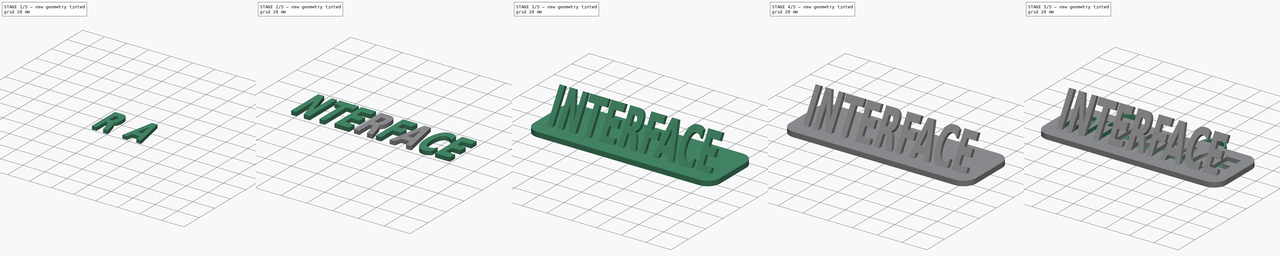
[diagram: build sequence overview — one tinted view per stage of 5, left to right]
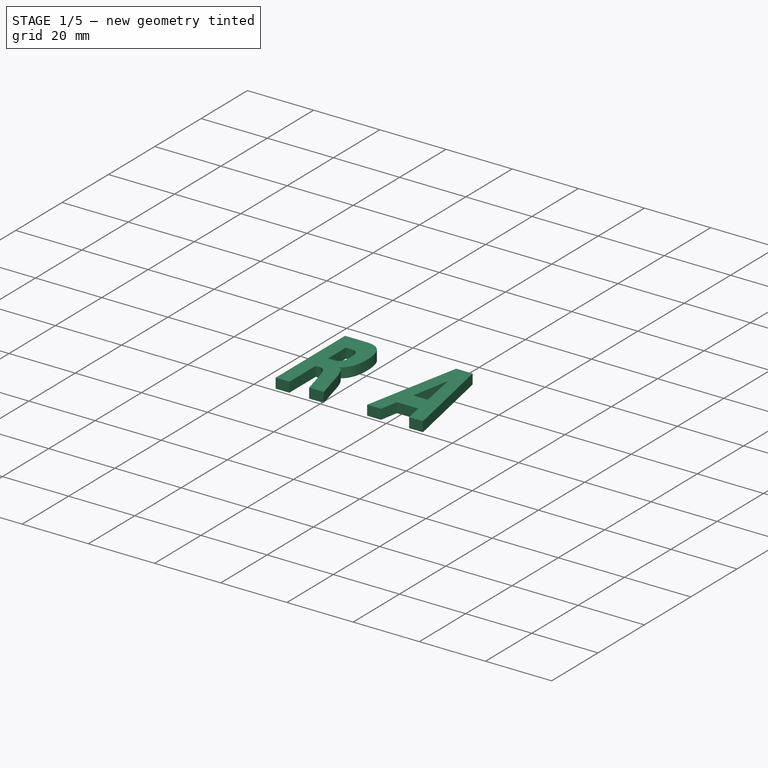
[diagram: stage 1 of 5 — iso view after this stage's code; geometry added in this stage tinted green]
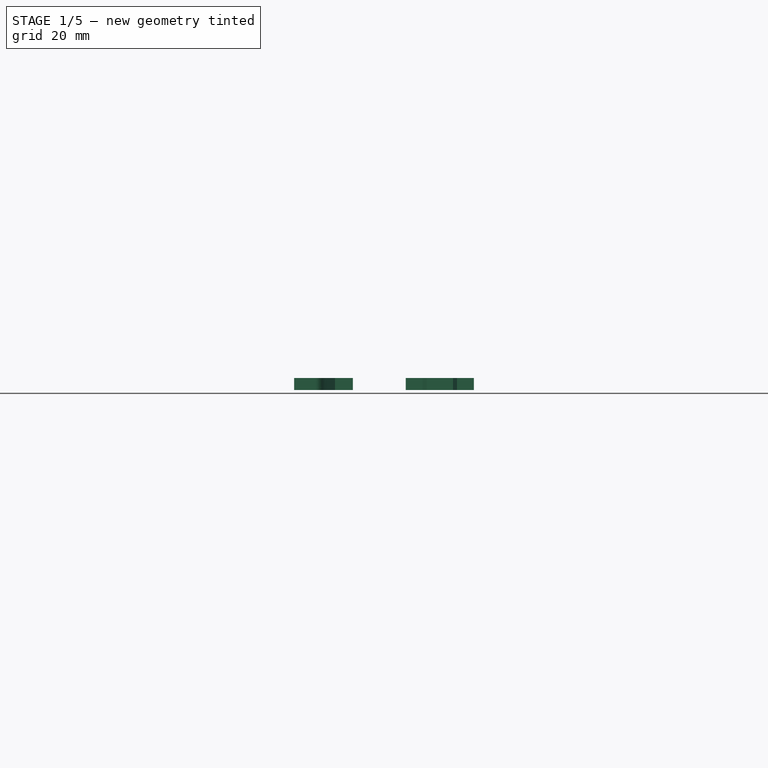
[diagram: stage 1 of 5 — front view after this stage's code; geometry added in this stage tinted green]
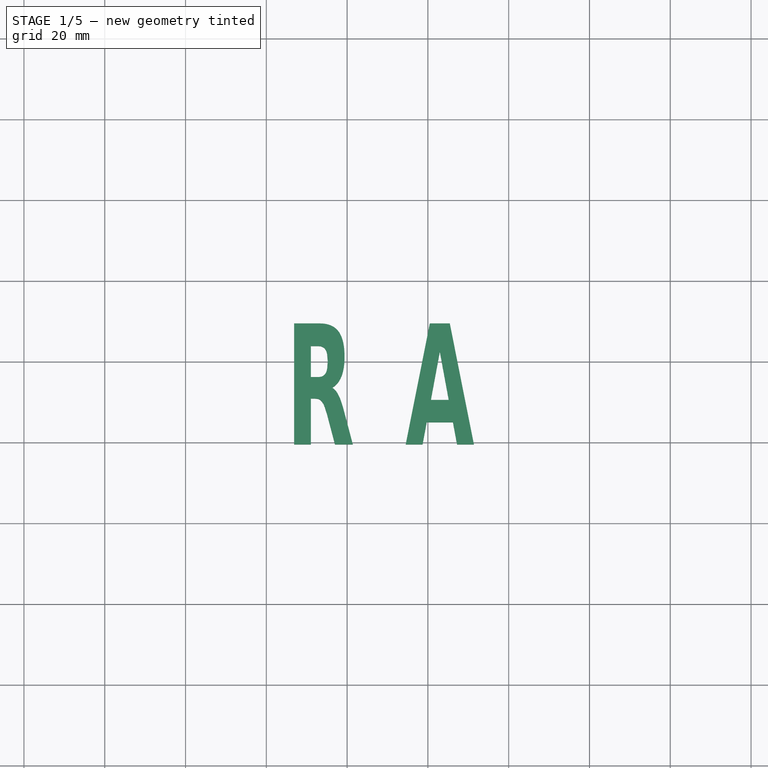
[diagram: stage 1 of 5 — top view after this stage's code; geometry added in this stage tinted green]
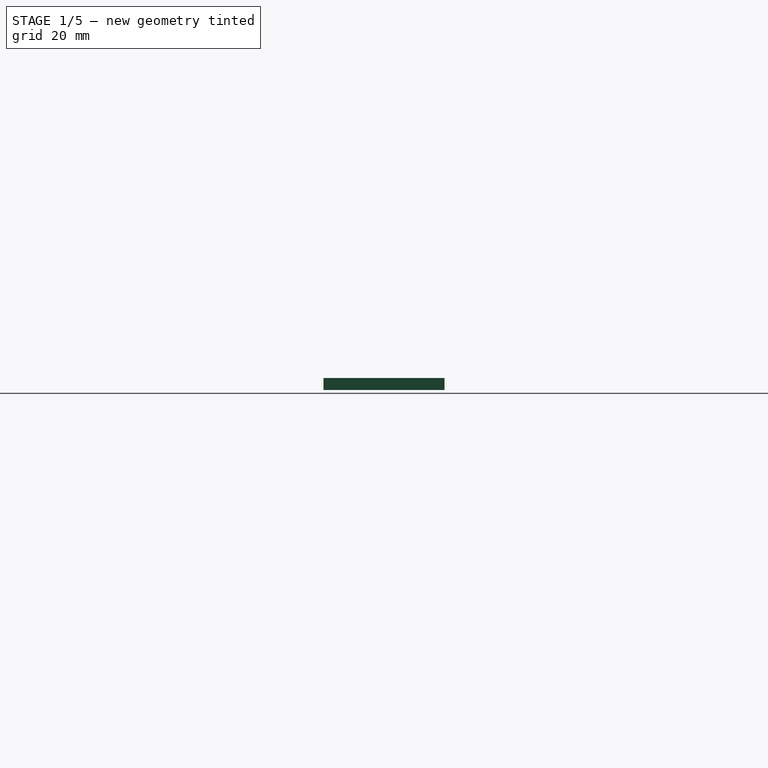
[diagram: stage 1 of 5 — right view after this stage's code; geometry added in this stage tinted green]
FCSTD DOCUMENT  (FreeCAD 0.16R)
Label: Interface-1
License: All rights reserved
LicenseURL: http://en.wikipedia.org/wiki/All_rights_reserved
objects: Part::Extrusion×23, Part::Feature×22, Part::Cut×5, Sketcher::SketchObject×2, Part::MultiFuse×2, PartDesign::Pad×1
note: 56 computed .brp shape members not serialized (recipe doc carries the construction recipe); baked Part::Feature solids carry a one-line shape summary decoded from their .brp

FEATURE [Part::Extrusion] Extrude016
  Base = -> path3423006
  Dir = (0,0,3)
  Solid = true
FEATURE [Part::Extrusion] Extrude017
  Base = -> path3423007
  Dir = (0,0,3)
  Solid = true
FEATURE [Part::Extrusion] Extrude019
  Base = -> path3423009
  Dir = (0,0,3)
  Solid = true
FEATURE [Part::Extrusion] Extrude020
  Base = -> path3423010
  Dir = (0,0,3)
  Solid = true
FEATURE [Part::Cut] Cut003
  Base = -> Extrude017
  Tool = -> Extrude016
FEATURE [Part::Cut] Cut004
  Base = -> Extrude019
  Tool = -> Extrude020
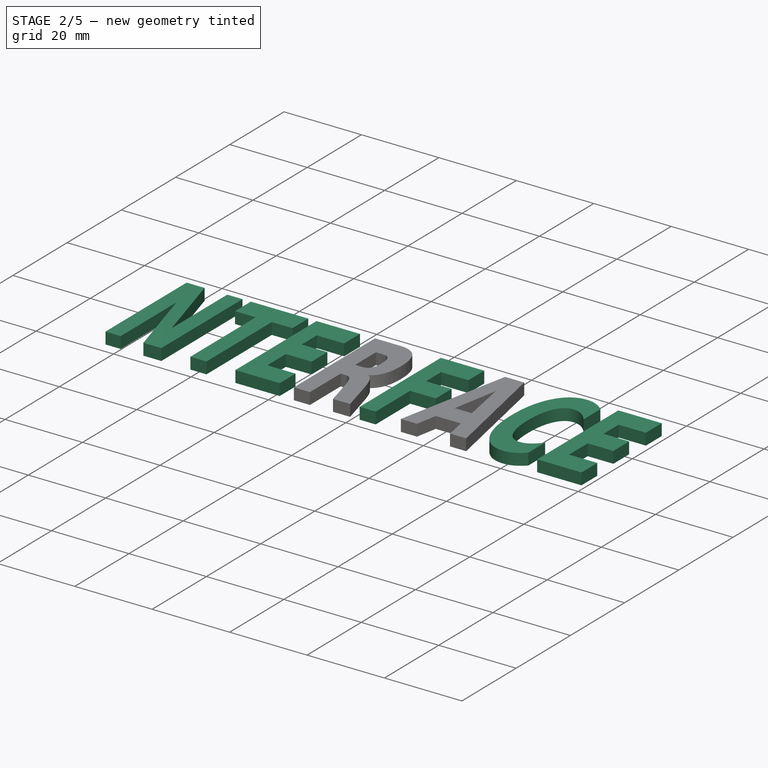
[diagram: stage 2 of 5 — iso view after this stage's code; geometry added in this stage tinted green]
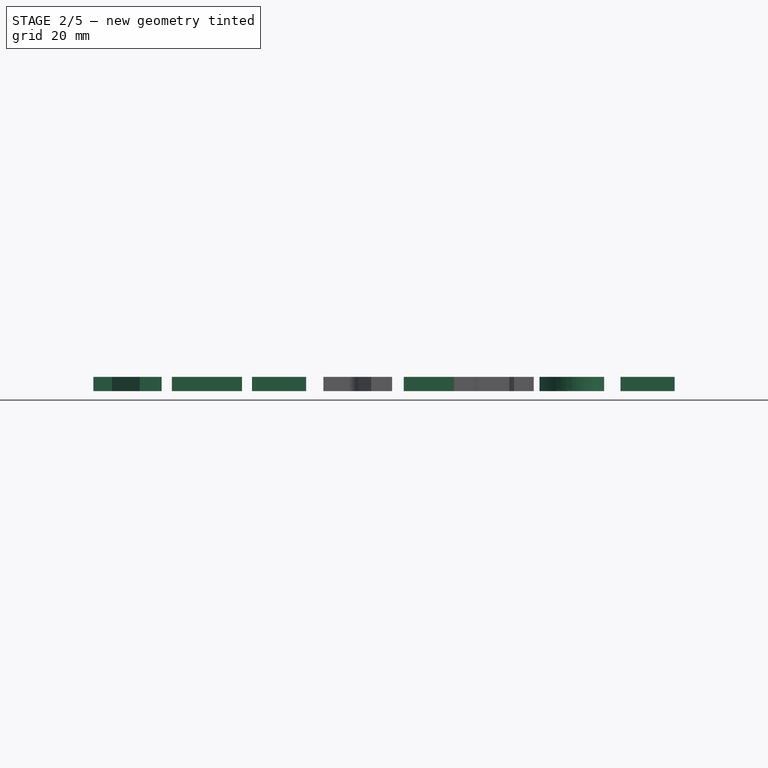
[diagram: stage 2 of 5 — front view after this stage's code; geometry added in this stage tinted green]
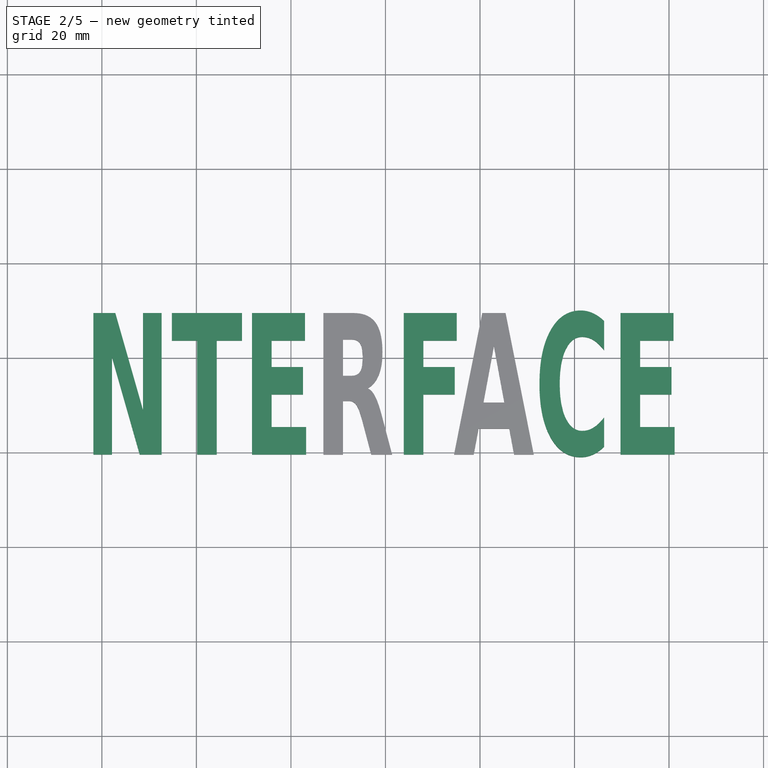
[diagram: stage 2 of 5 — top view after this stage's code; geometry added in this stage tinted green]
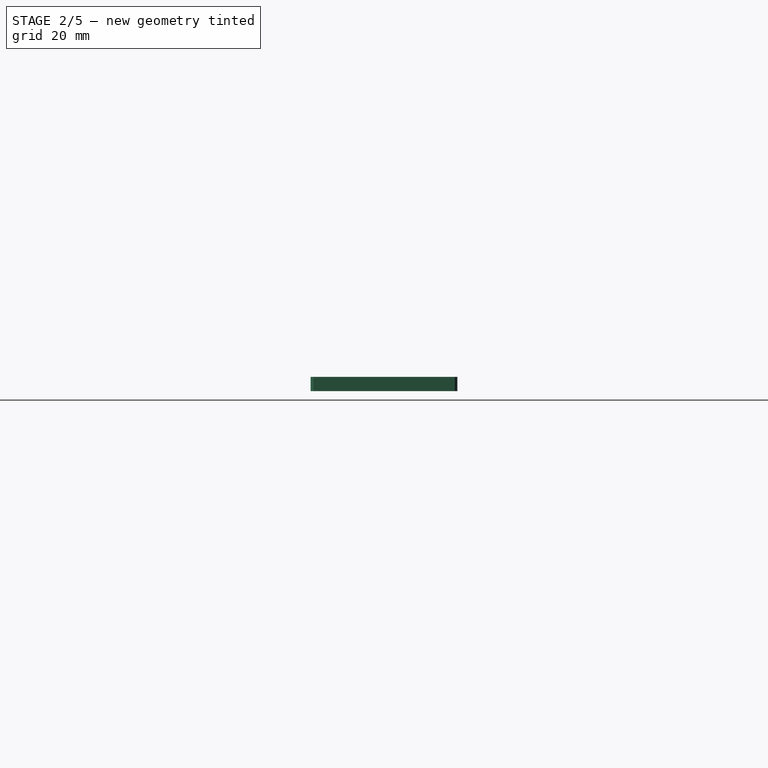
[diagram: stage 2 of 5 — right view after this stage's code; geometry added in this stage tinted green]
FEATURE [Part::Extrusion] Extrude013
  Base = -> path3423003
  Dir = (0,0,3)
  Solid = true
FEATURE [Part::Extrusion] Extrude014
  Base = -> path3423004
  Dir = (0,0,3)
  Solid = true
FEATURE [Part::Extrusion] Extrude015
  Base = -> path3423005
  Dir = (0,0,3)
  Solid = true
FEATURE [Part::Extrusion] Extrude018
  Base = -> path3423008
  Dir = (0,0,3)
  Solid = true
FEATURE [Part::Extrusion] Extrude021
  Base = -> path3423011
  Dir = (0,0,3)
  Solid = true
FEATURE [Part::Extrusion] Extrude022
  Base = -> path3423012
  Dir = (0,0,3)
  Solid = true
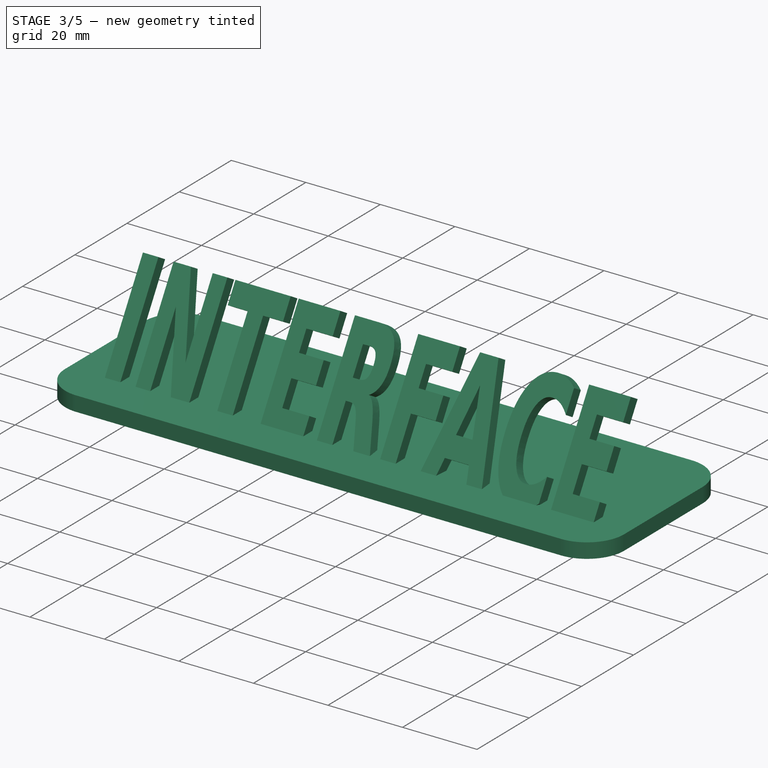
[diagram: stage 3 of 5 — iso view after this stage's code; geometry added in this stage tinted green]
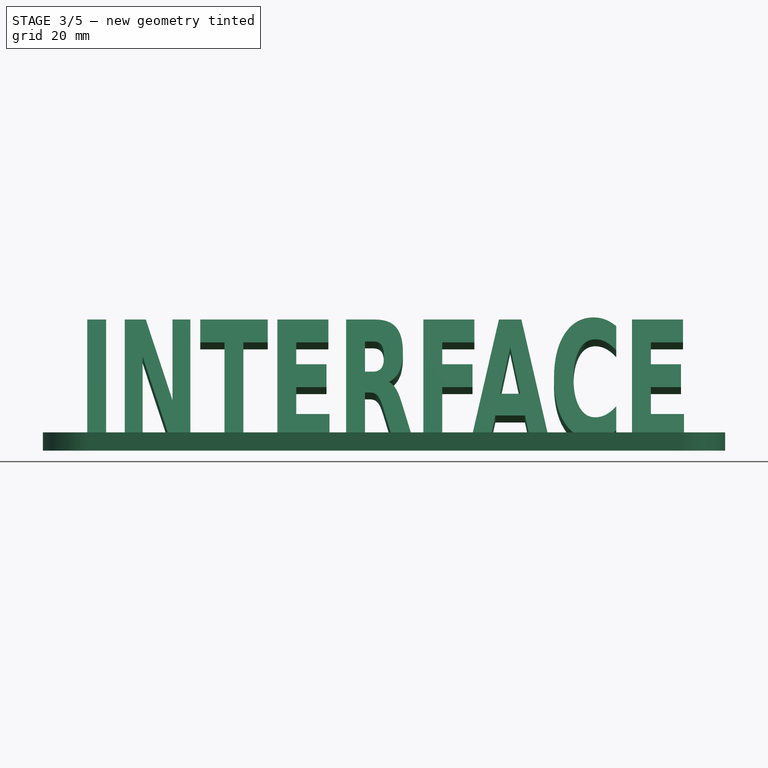
[diagram: stage 3 of 5 — front view after this stage's code; geometry added in this stage tinted green]
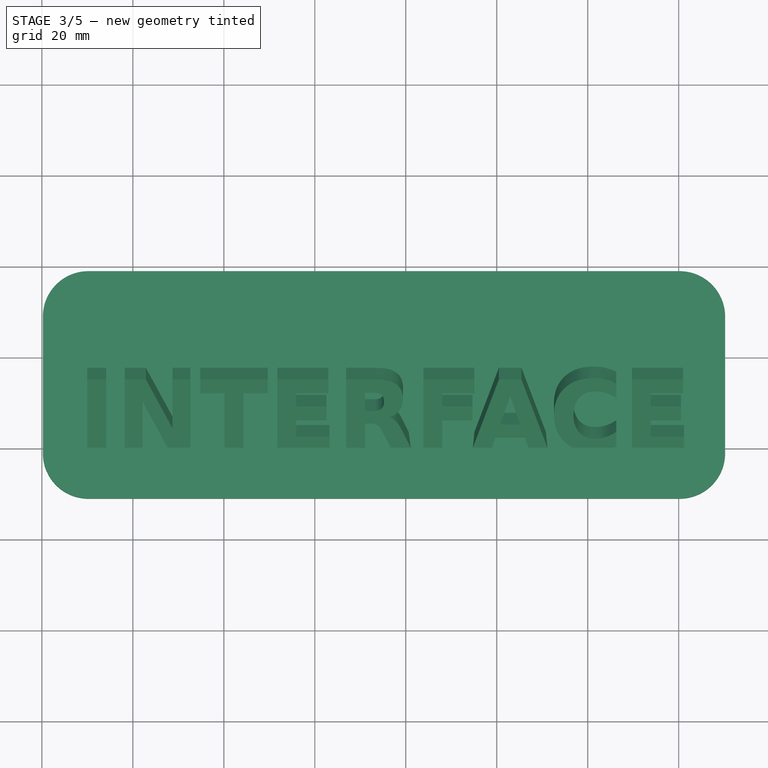
[diagram: stage 3 of 5 — top view after this stage's code; geometry added in this stage tinted green]
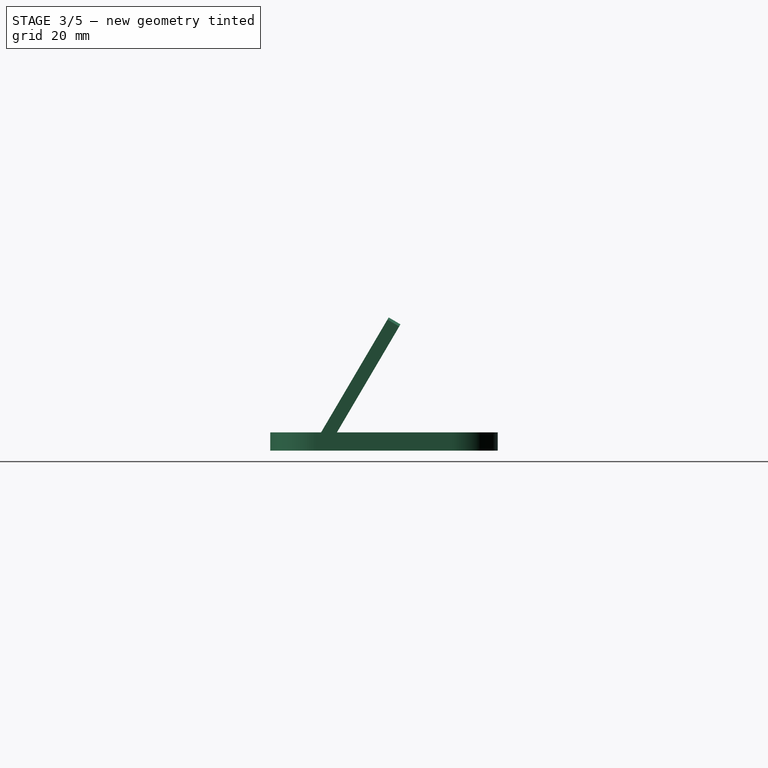
[diagram: stage 3 of 5 — right view after this stage's code; geometry added in this stage tinted green]
FEATURE [Part::Extrusion] Extrude005
  Base = -> path3419001
  Dir = (0,0,3)
  Solid = true
FEATURE [Part::Extrusion] Extrude007
  Base = -> path3423
  Dir = (0,0,3)
  Solid = true
FEATURE [Part::Extrusion] Extrude008
  Base = -> path3423001
  Dir = (0,0,3)
  Solid = true
FEATURE [Part::Cut] Cut001
  Base = -> Extrude007
  Tool = -> Extrude008
FEATURE [Part::Extrusion] Extrude011
  Base = -> Sketch
  Dir = (0,0,4)
  Solid = true
FEATURE [Part::Feature] path3423002
  shape: bbox 4.152 x 29.94 x 2.727e-07 mm, 0 faces, 0 solids (baked)
FEATURE [Part::Feature] path3423003
  shape: bbox 14.43 x 29.94 x 2.727e-07 mm, 0 faces, 0 solids (baked)
FEATURE [Part::Feature] path3423004
  shape: bbox 14.84 x 29.94 x 2.727e-07 mm, 0 faces, 0 solids (baked)
FEATURE [Part::Feature] path3423005
  shape: bbox 11.44 x 29.94 x 2.727e-07 mm, 0 faces, 0 solids (baked)
FEATURE [Part::Feature] path3423006
  shape: bbox 4.185 x 7.681 x 2.727e-07 mm, 0 faces, 0 solids (baked)
FEATURE [Part::Feature] path3423007
  shape: bbox 14.54 x 29.94 x 2.727e-07 mm, 0 faces, 0 solids (baked)
FEATURE [Part::Feature] path3423008
  shape: bbox 11.21 x 29.94 x 2.727e-07 mm, 0 faces, 0 solids (baked)
FEATURE [Part::Feature] path3423009
  shape: bbox 16.88 x 29.94 x 2.727e-07 mm, 0 faces, 0 solids (baked)
FEATURE [Part::Feature] path3423010
  shape: bbox 4.411 x 11.91 x 2.727e-07 mm, 0 faces, 0 solids (baked)
FEATURE [Part::Feature] path3423011
  shape: bbox 13.7 x 31.07 x 2.727e-07 mm, 0 faces, 0 solids (baked)
FEATURE [Part::Feature] path3423012
  shape: bbox 11.44 x 29.94 x 2.727e-07 mm, 0 faces, 0 solids (baked)
FEATURE [Part::Extrusion] Extrude012
  Base = -> path3423002
  Dir = (0,0,3)
  Solid = true
FEATURE [Part::MultiFuse] Fusion001
  Placement = pos=(0,-37.0531,70.7955) rot=(1,0,0;1.03892rad)
  Shapes = -> [Cut004,Extrude015,Extrude022,Extrude018,Extrude013,Cut003,Extrude014,Extrude021,Extrude012]
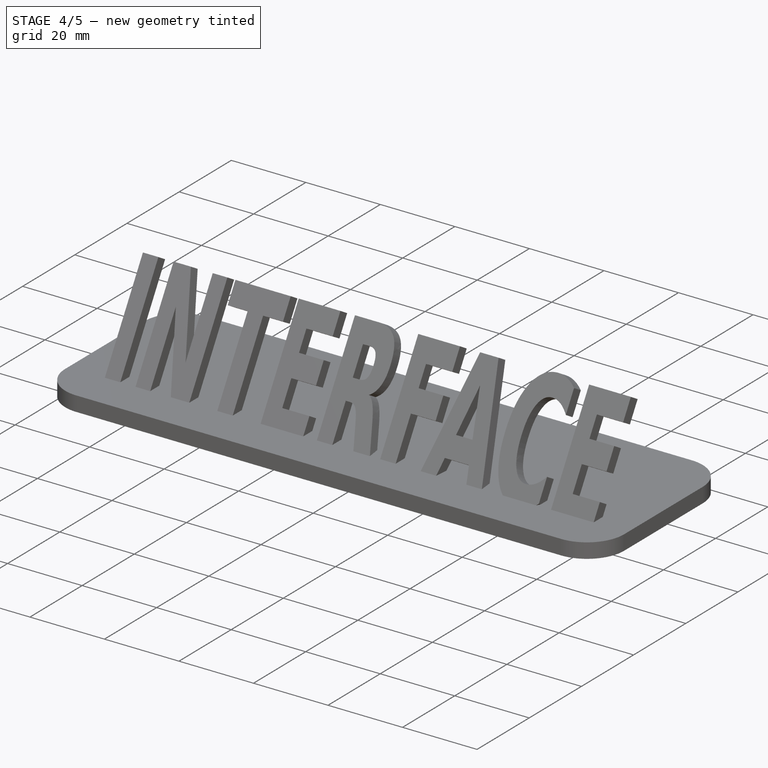
[diagram: stage 4 of 5 — iso view after this stage's code; geometry added in this stage tinted green]
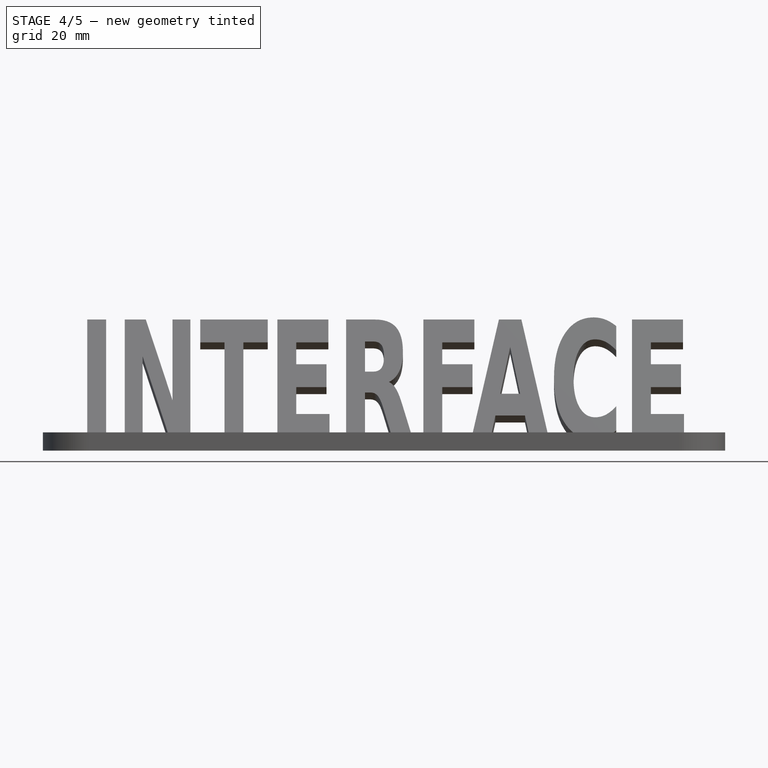
[diagram: stage 4 of 5 — front view after this stage's code; geometry added in this stage tinted green]
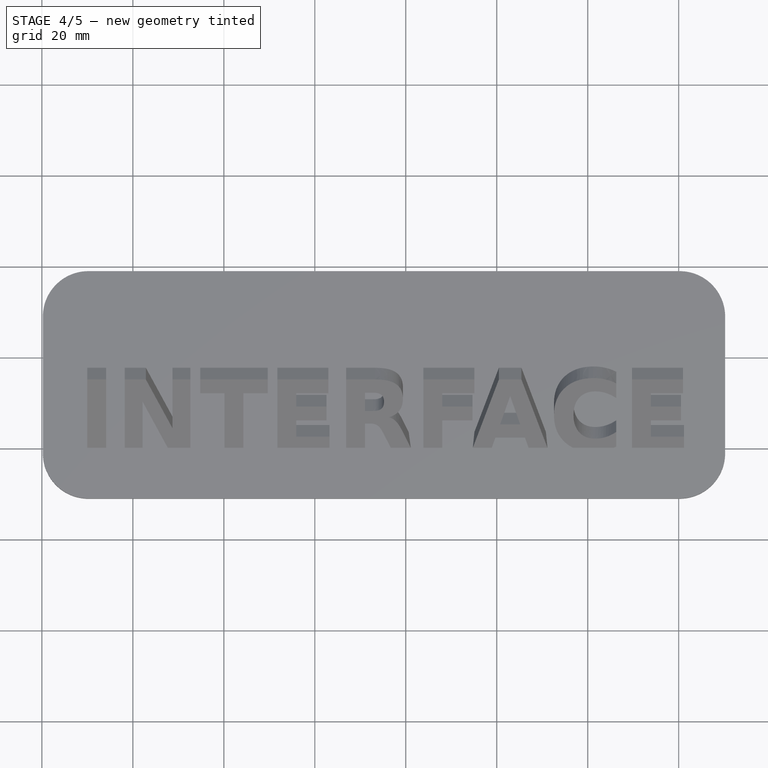
[diagram: stage 4 of 5 — top view after this stage's code; geometry added in this stage tinted green]
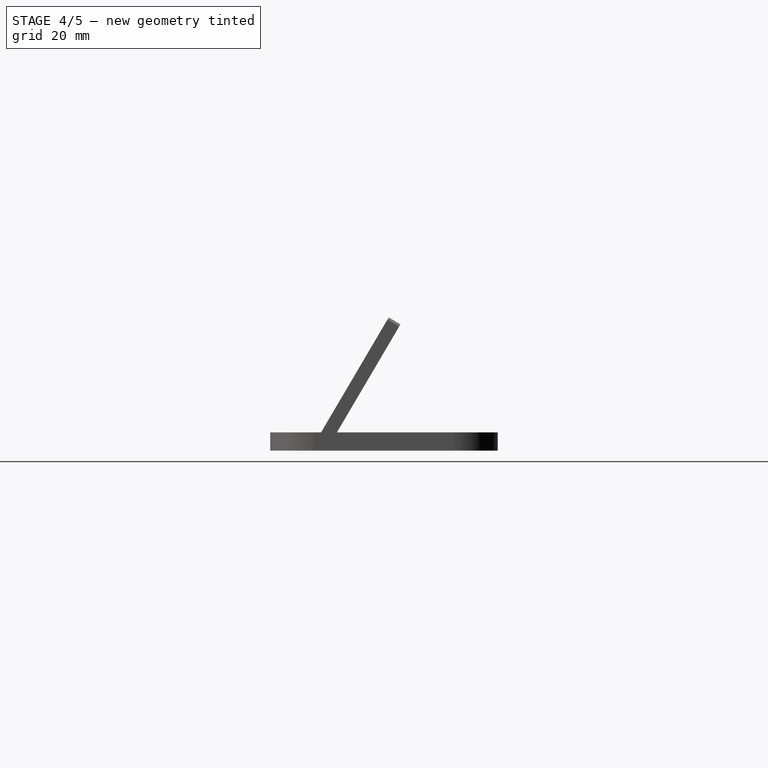
[diagram: stage 4 of 5 — right view after this stage's code; geometry added in this stage tinted green]
FEATURE [Part::Extrusion] Extrude003
  Base = -> path3417
  Dir = (0,0,3)
  Solid = true
FEATURE [Part::Extrusion] Extrude004
  Base = -> path3419
  Dir = (0,0,3)
  Solid = true
FEATURE [Part::Extrusion] Extrude006
  Base = -> path3421
  Dir = (0,0,3)
  Solid = true
FEATURE [Part::Extrusion] Extrude009
  Base = -> path3425
  Dir = (0,0,3)
  Solid = true
FEATURE [Part::Extrusion] Extrude010
  Base = -> path3427
  Dir = (0,0,3)
  Solid = true
FEATURE [Part::Cut] Cut
  Base = -> Extrude005
  Tool = -> Extrude004
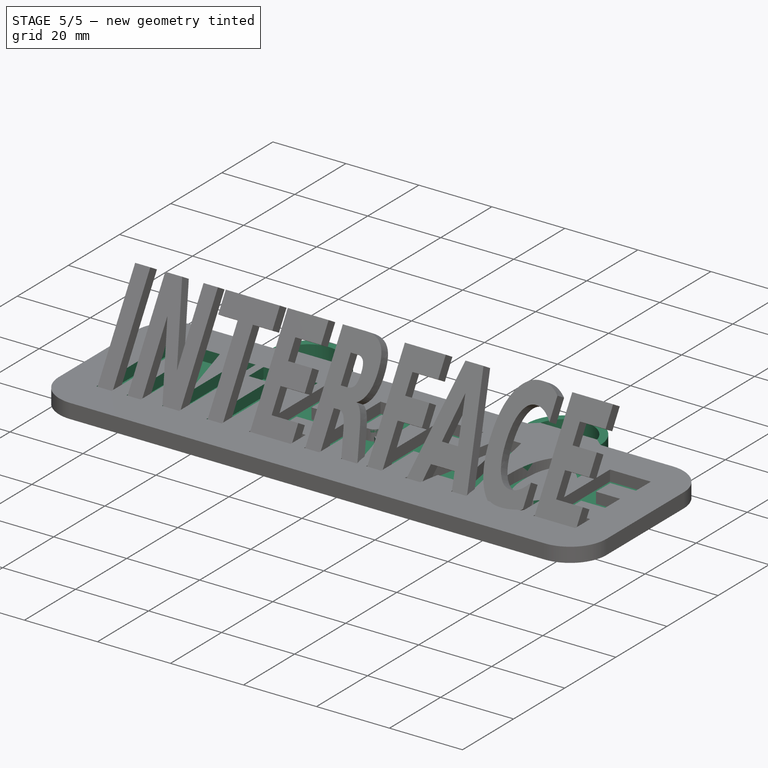
[diagram: stage 5 of 5 — iso view after this stage's code; geometry added in this stage tinted green]
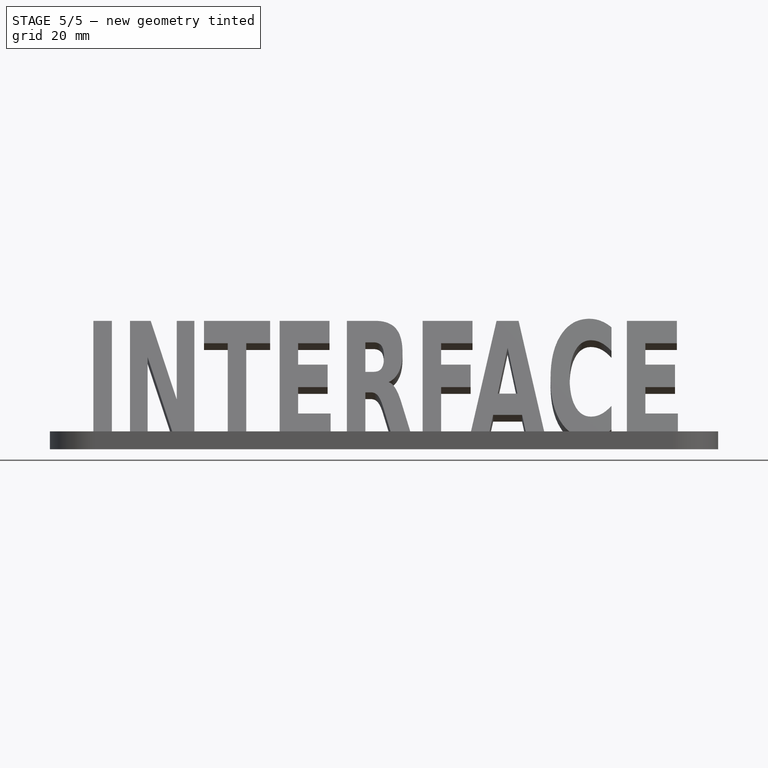
[diagram: stage 5 of 5 — front view after this stage's code; geometry added in this stage tinted green]
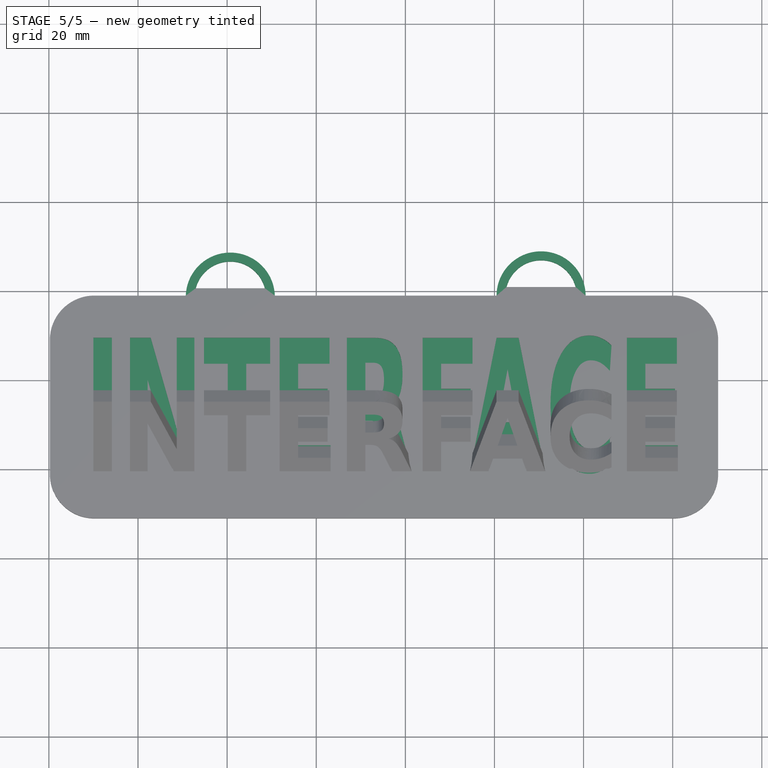
[diagram: stage 5 of 5 — top view after this stage's code; geometry added in this stage tinted green]
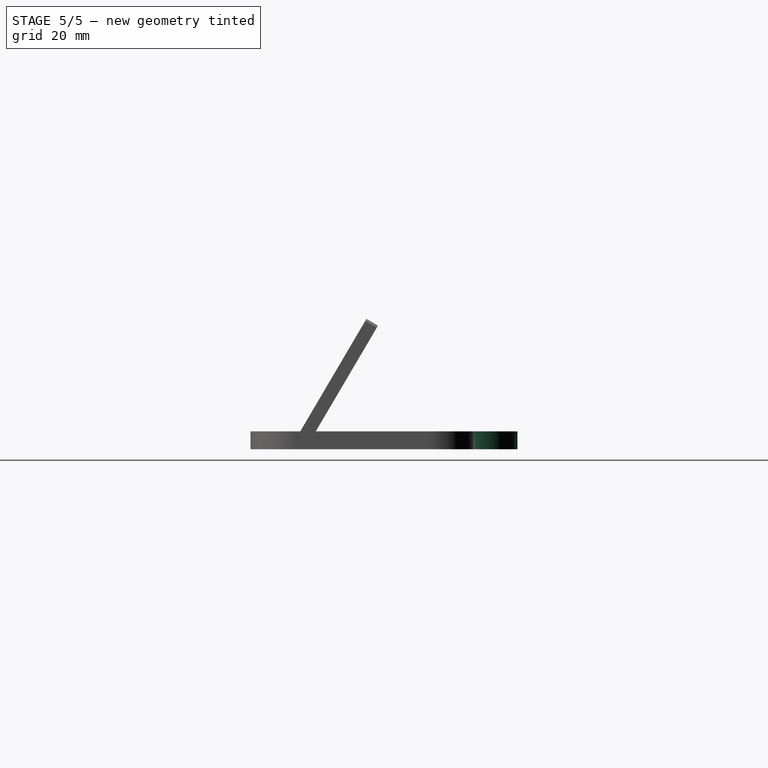
[diagram: stage 5 of 5 — right view after this stage's code; geometry added in this stage tinted green]
FEATURE [Part::Feature] path3411
  shape: bbox 4.152 x 29.94 x 2.727e-07 mm, 0 faces, 0 solids (baked)
FEATURE [Part::Feature] path3413
  shape: bbox 14.43 x 29.94 x 2.727e-07 mm, 0 faces, 0 solids (baked)
FEATURE [Part::Feature] path3415
  shape: bbox 14.84 x 29.94 x 2.727e-07 mm, 0 faces, 0 solids (baked)
FEATURE [Part::Feature] path3417
  shape: bbox 11.44 x 29.94 x 2.727e-07 mm, 0 faces, 0 solids (baked)
FEATURE [Part::Feature] path3419
  shape: bbox 4.185 x 7.681 x 2.727e-07 mm, 0 faces, 0 solids (baked)
FEATURE [Part::Feature] path3419001
  shape: bbox 14.54 x 29.94 x 2.727e-07 mm, 0 faces, 0 solids (baked)
FEATURE [Part::Feature] path3421
  shape: bbox 11.21 x 29.94 x 2.727e-07 mm, 0 faces, 0 solids (baked)
FEATURE [Part::Feature] path3423
  shape: bbox 16.88 x 29.94 x 2.727e-07 mm, 0 faces, 0 solids (baked)
FEATURE [Part::Feature] path3423001
  shape: bbox 4.411 x 11.91 x 2.727e-07 mm, 0 faces, 0 solids (baked)
FEATURE [Part::Feature] path3425
  shape: bbox 13.7 x 31.07 x 2.727e-07 mm, 0 faces, 0 solids (baked)
FEATURE [Part::Feature] path3427
  shape: bbox 11.44 x 29.94 x 2.727e-07 mm, 0 faces, 0 solids (baked)
FEATURE [Part::Extrusion] Extrude
  Base = -> path3411
  Dir = (0,0,3)
  Solid = true
FEATURE [Part::Extrusion] Extrude001
  Base = -> path3413
  Dir = (0,0,3)
  Solid = true
FEATURE [Part::Extrusion] Extrude002
  Base = -> path3415
  Dir = (0,0,3)
  Solid = true
FEATURE [Sketcher::SketchObject] Sketch
  sketch-geometry (8):
    g0: LineSegment StartX=30.21 StartY=-41.0038 StartZ=0 EndX=160.21 EndY=-41.0038 EndZ=0
    g1: LineSegment StartX=170.21 StartY=-51.0038 StartZ=0 EndX=170.21 EndY=-81.0038 EndZ=0
    g2: LineSegment StartX=160.21 StartY=-91.0038 StartZ=0 EndX=30.21 EndY=-91.0038 EndZ=0
    g3: LineSegment StartX=20.21 StartY=-81.0038 StartZ=0 EndX=20.21 EndY=-51.0038 EndZ=0
    g4: ArcOfCircle CenterX=30.21 CenterY=-51.0038 CenterZ=0 NormalX=0 NormalY=0 NormalZ=1 Radius=10 StartAngle=1.5708 EndAngle=3.14159
    g5: ArcOfCircle CenterX=30.21 CenterY=-81.0038 CenterZ=0 NormalX=0 NormalY=0 NormalZ=1 Radius=10 StartAngle=3.14159 EndAngle=4.71239
    g6: ArcOfCircle CenterX=160.21 CenterY=-51.0038 CenterZ=0 NormalX=0 NormalY=0 NormalZ=1 Radius=10 StartAngle=0 EndAngle=1.5708
    g7: ArcOfCircle CenterX=160.21 CenterY=-81.0038 CenterZ=0 NormalX=0 NormalY=0 NormalZ=1 Radius=10 StartAngle=4.71239 EndAngle=6.28319
  constraints (18):
    c: Horizontal(g0)
    c: Horizontal(g2)
    c: Vertical(g1)
    c: Vertical(g3)
    c: Tangent(g0,g4) = 1.5708
    c: Tangent(g3,g4) = 1.5708
    c: Tangent(g3,g5) = 1.5708
    c: Tangent(g2,g5) = 1.5708
    c: Tangent(g1,g6) = 1.5708
    c: Tangent(g0,g6) = 1.5708
    c: Tangent(g1,g7) = 1.5708
    c: Tangent(g2,g7) = 1.5708
    c: Radius(g5) = 10
    c: Equal(g5,g4)
    c: Equal(g4,g6)
    c: Equal(g6,g7)
    c: DistanceX(g3,g1) = 150
    c: DistanceY(g2,g0) = 50
FEATURE [Part::MultiFuse] Fusion
  Placement = pos=(0,0,1) rot=(0,0,1;0rad)
  Shapes = -> [Cut001,Extrude003,Extrude010,Extrude006,Extrude001,Cut,Extrude002,Extrude009,Extrude]
FEATURE [Part::Cut] Cut002
  Base = -> Extrude011
  Tool = -> Fusion
FEATURE [Sketcher::SketchObject] Sketch001
  Placement = pos=(0,0,4) rot=(0,0,1;0rad)
  Support = -> Cut002 [Face5]
  sketch-geometry (8):
    g0: ArcOfCircle CenterX=60.7165 CenterY=-41.3581 CenterZ=0 NormalX=0 NormalY=0 NormalZ=1 Radius=10 StartAngle=0 EndAngle=3.14159
    g1: ArcOfCircle CenterX=130.465 CenterY=-41.0755 CenterZ=0 NormalX=0 NormalY=0 NormalZ=1 Radius=10 StartAngle=0 EndAngle=3.14159
    g2: ArcOfCircle CenterX=60.7165 CenterY=-41.3581 CenterZ=0 NormalX=0 NormalY=0 NormalZ=1 Radius=8 StartAngle=0.25268 EndAngle=2.88891
    g3: ArcOfCircle CenterX=130.465 CenterY=-41.0755 CenterZ=0 NormalX=0 NormalY=0 NormalZ=1 Radius=8 StartAngle=0.25268 EndAngle=2.88891
    g4: LineSegment StartX=50.7165 StartY=-41.3581 StartZ=0 EndX=70.7165 EndY=-41.3581 EndZ=0
    g5: LineSegment StartX=120.465 StartY=-41.0755 StartZ=0 EndX=140.465 EndY=-41.0755 EndZ=0
    g6: LineSegment StartX=52.9705 StartY=-39.3581 StartZ=0 EndX=68.4624 EndY=-39.3581 EndZ=0
    g7: LineSegment StartX=138.211 StartY=-39.0755 StartZ=0 EndX=122.719 EndY=-39.0755 EndZ=0
  constraints (22):
    c: Radius(g0) = 10
    c: Radius(g1) = 10
    c: Coincident(g2,g0)
    c: Coincident(g3,g1)
    c: Radius(g2) = 8
    c: Radius(g3) = 8
    c: Coincident(g4,g0)
    c: Coincident(g4,g0)
    c: Horizontal(g4)
    c: Coincident(g5,g1)
    c: Coincident(g5,g1)
    c: DistanceY(g0,g2) = 2
    c: DistanceY(g0,g2) = 2
    c: Coincident(g6,g2)
    c: Coincident(g6,g2)
    c: DistanceY(g1,g3) = 2
    c: DistanceY(g1,g3) = 2
    c: Coincident(g7,g3)
    c: Coincident(g7,g3)
    c: Horizontal(g7)
    c: Perpendicular(g1,g5)
    c: Perpendicular(g0,g4)
FEATURE [PartDesign::Pad] Pad
  Length = 4
  Length2 = 100
  Reversed = true
  Sketch = -> Sketch001
  Type = 0
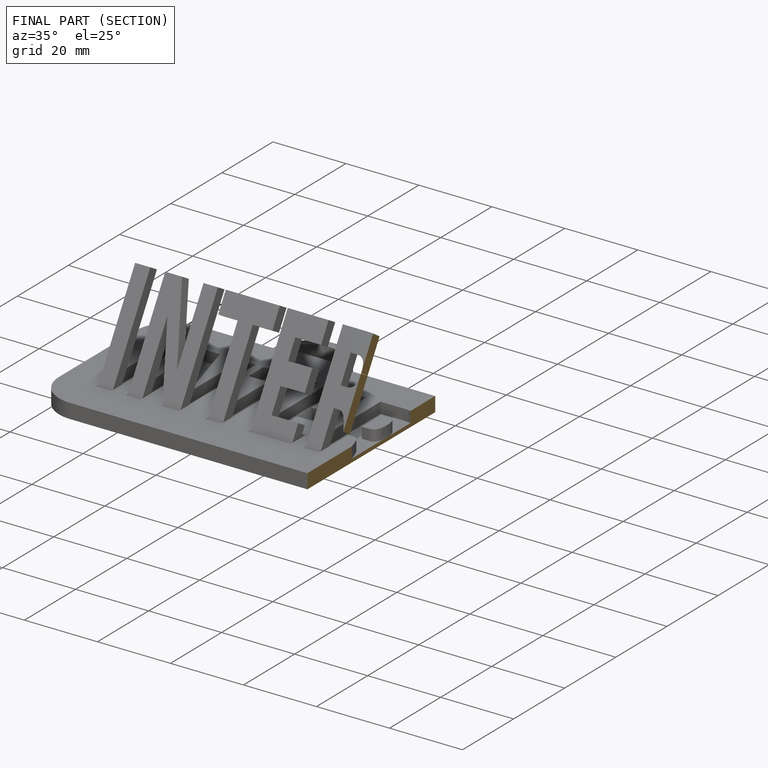
[diagram: finished part — half-section view (interior)]
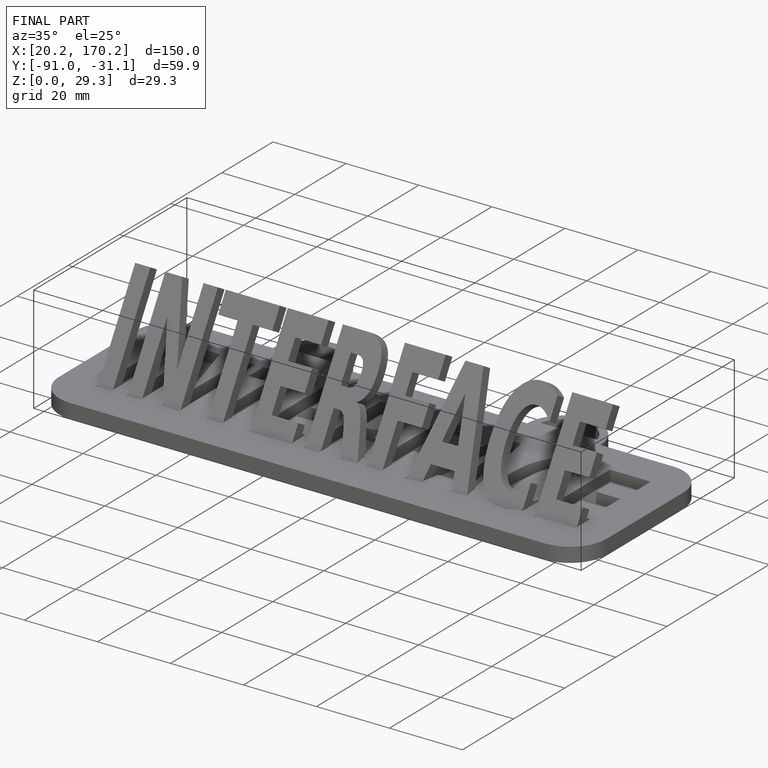
[diagram: finished part — iso view with bounding-box wireframe]
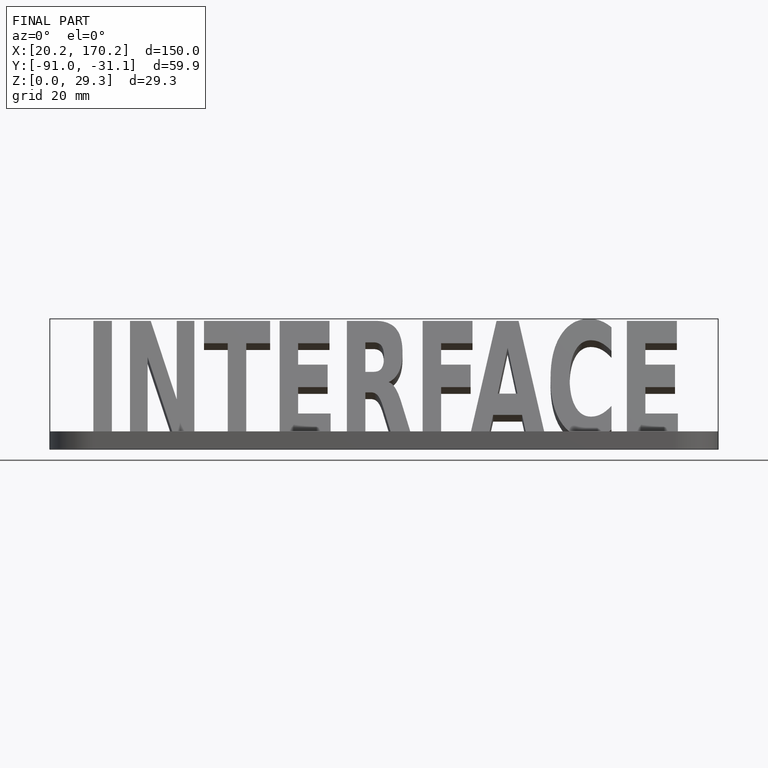
[diagram: finished part — front view with bounding-box wireframe]
